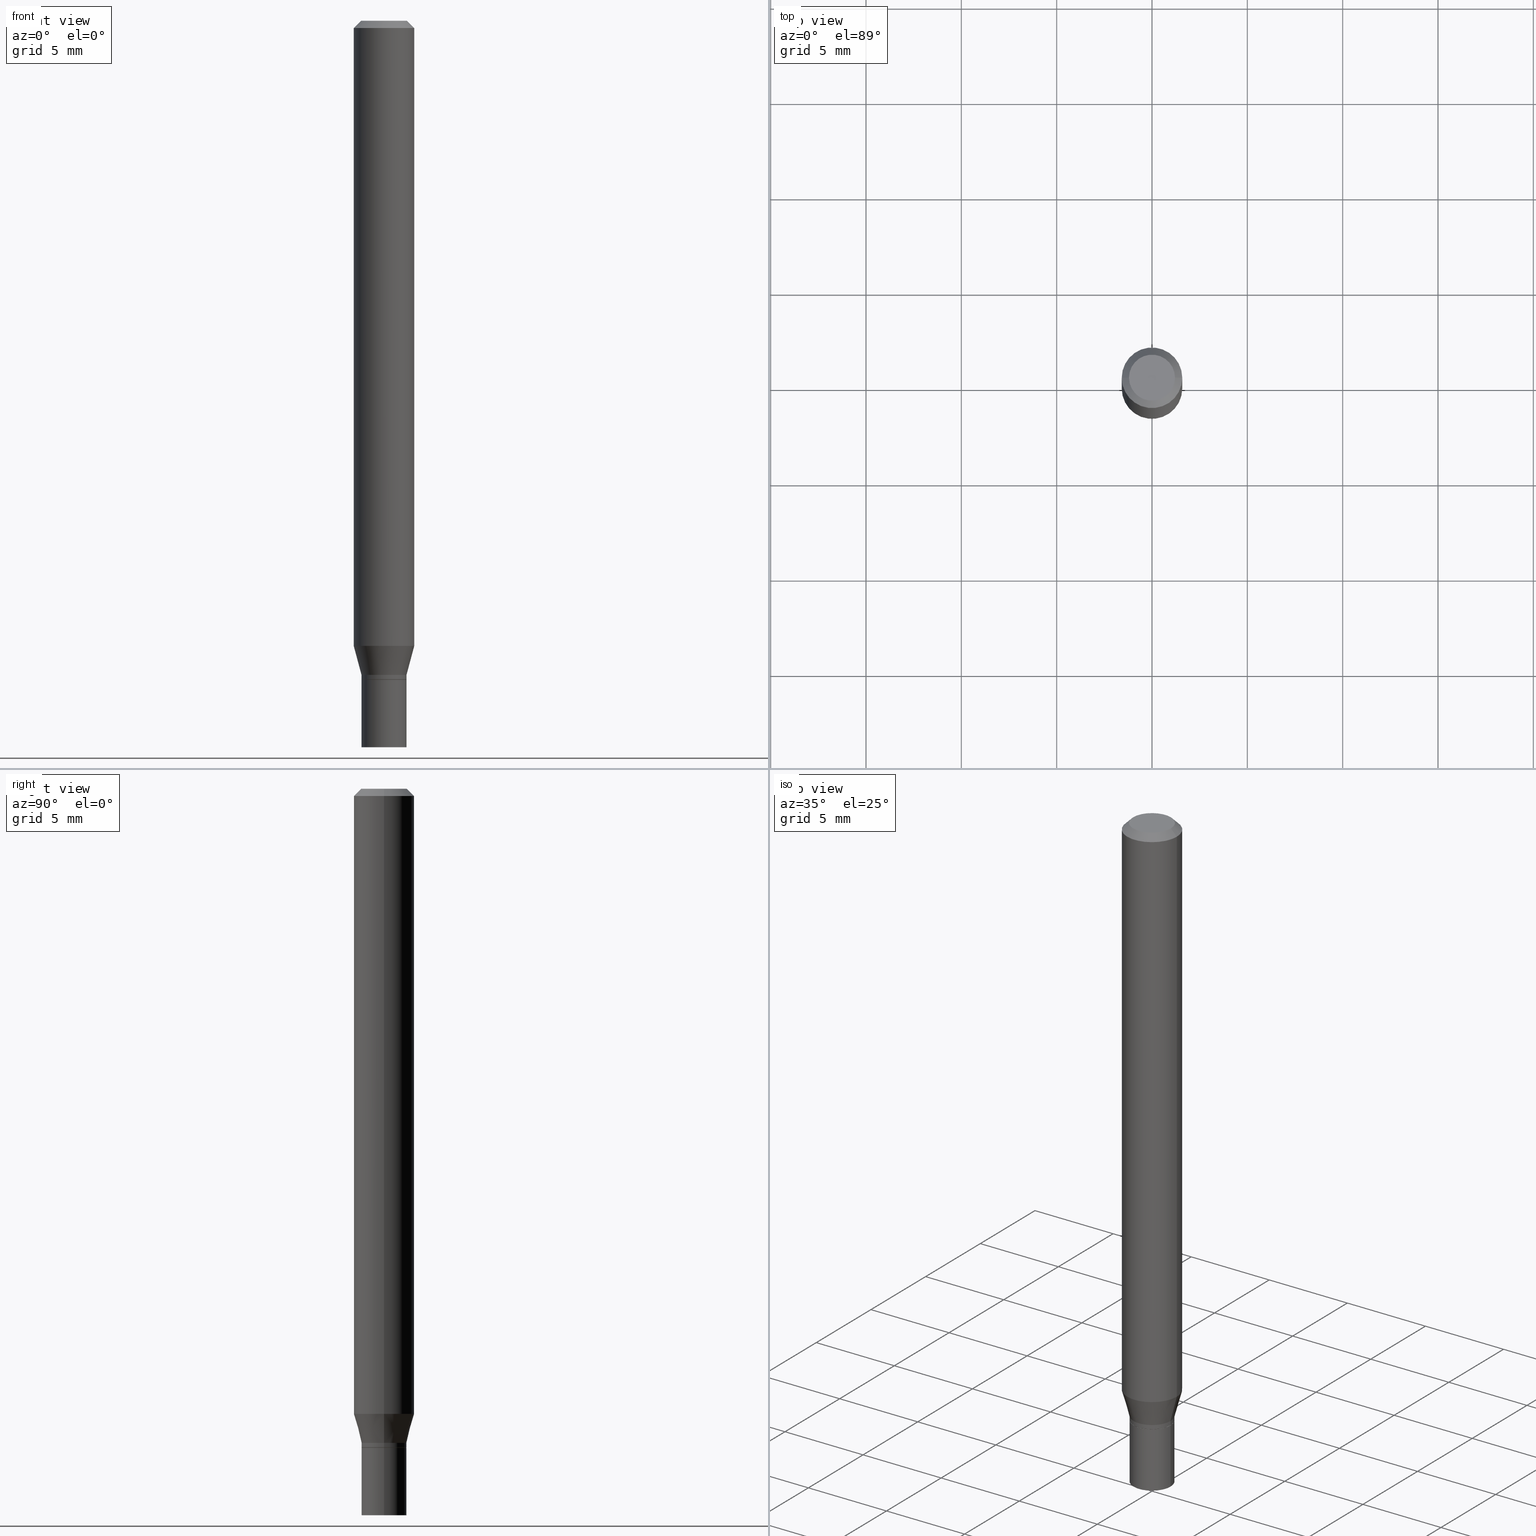
[diagram: canonical four-view strip — front | top / right | iso, engineering-drawing reading convention]
A machine part, canonical four-view strip (front | top / right | iso — engineering-drawing reading convention). The complete STEP part file that produces these views, byte-faithful:
ISO-10303-21;
HEADER;
FILE_DESCRIPTION (( 'STEP AP203' ),
    '1' );
FILE_NAME ('01149.STEP',
    '2024-03-19T23:23:34',
    ( '' ),
    ( '' ),
    'SwSTEP 2.0',
    'SolidWorks 2023',
    '' );
FILE_SCHEMA (( 'CONFIG_CONTROL_DESIGN' ));
ENDSEC;

DATA;
#1 = ORIENTED_EDGE ( 'NONE', *, *, #292, .T. ) ;
#2 = AXIS2_PLACEMENT_3D ( 'NONE', #419, #88, #309 ) ;
#3 = EDGE_CURVE ( 'NONE', #342, #327, #15, .T. ) ;
#4 = PRODUCT ( '01149', '01149', '', ( #192 ) ) ;
#5 = CIRCLE ( 'NONE', #218, 0.06250000000000000000 ) ;
#6 = CARTESIAN_POINT ( 'NONE',  ( 3.325837576411786624E-29, -4.748414620826679034E-15, -1.360000000000000320 ) ) ;
#7 = EDGE_LOOP ( 'NONE', ( #180, #405, #236, #177 ) ) ;
#8 = DIRECTION ( 'NONE',  ( 1.000000000000000000, -6.982962677686260400E-15, 0.000000000000000000 ) ) ;
#9 = ORIENTED_EDGE ( 'NONE', *, *, #61, .F. ) ;
#10 = ORIENTED_EDGE ( 'NONE', *, *, #3, .F. ) ;
#11 = AXIS2_PLACEMENT_3D ( 'NONE', #6, #440, #104 ) ;
#12 = ORIENTED_EDGE ( 'NONE', *, *, #98, .F. ) ;
#13 = ORIENTED_EDGE ( 'NONE', *, *, #83, .T. ) ;
#14 = ORIENTED_EDGE ( 'NONE', *, *, #49, .F. ) ;
#15 = LINE ( 'NONE', #183, #365 ) ;
#16 = PERSON_AND_ORGANIZATION_ROLE ( 'design_supplier' ) ;
#17 = ADVANCED_FACE ( 'NONE', ( #254 ), #243, .T. ) ;
#18 = DIRECTION ( 'NONE',  ( 1.000000000000000000, -6.982962677686271444E-15, 0.000000000000000000 ) ) ;
#19 = LINE ( 'NONE', #323, #158 ) ;
#20 = LINE ( 'NONE', #146, #346 ) ;
#21 = AXIS2_PLACEMENT_3D ( 'NONE', #390, #30, #160 ) ;
#22 = CONICAL_SURFACE ( 'NONE', #282, 0.04649999999999993722, 0.2617993877991500740 ) ;
#23 = CARTESIAN_POINT ( 'NONE',  ( 0.000000000000000000, 0.000000000000000000, 0.000000000000000000 ) ) ;
#24 = LOCAL_TIME ( 19, 23, 34.00000000000000000, #229 ) ;
#25 = CARTESIAN_POINT ( 'NONE',  ( 0.04599999999999999922, -5.071376644669669027E-15, -1.360500000000000043 ) ) ;
#26 = CARTESIAN_POINT ( 'NONE',  ( -0.06250000000000000000, -1.835476588243164778E-15, -0.01499999999999999944 ) ) ;
#27 = APPLICATION_PROTOCOL_DEFINITION ( 'international standard', 'config_control_design', 1994, #163 ) ;
#28 = DIRECTION ( 'NONE',  ( 1.000000000000000000, -6.982962677686265922E-15, 4.876176775795935793E-29 ) ) ;
#29 = LINE ( 'NONE', #157, #286 ) ;
#30 = DIRECTION ( 'NONE',  ( -2.445468806185136597E-29, 3.491481338843145583E-15, 1.000000000000000000 ) ) ;
#31 = CONICAL_SURFACE ( 'NONE', #415, 0.06250000000000000000, 0.7853981633974456145 ) ;
#32 = CYLINDRICAL_SURFACE ( 'NONE', #249, 0.04649999999999999967 ) ;
#33 = DIRECTION ( 'NONE',  ( -2.445468806185136597E-29, 3.491481338843145583E-15, 1.000000000000000000 ) ) ;
#34 =( CONVERSION_BASED_UNIT ( 'INCH', #277 ) LENGTH_UNIT ( ) NAMED_UNIT ( #89 ) );
#35 = CYLINDRICAL_SURFACE ( 'NONE', #101, 0.06250000000000000000 ) ;
#36 = ORIENTED_EDGE ( 'NONE', *, *, #245, .T. ) ;
#37 = FACE_OUTER_BOUND ( 'NONE', #82, .T. ) ;
#38 = LINE ( 'NONE', #209, #305 ) ;
#39 = VERTEX_POINT ( 'NONE', #288 ) ;
#40 = ORIENTED_EDGE ( 'NONE', *, *, #200, .F. ) ;
#41 = MANIFOLD_SOLID_BREP ( 'Body-Move/Copy2[1]', #216 ) ;
#42 = ORIENTED_EDGE ( 'NONE', *, *, #285, .F. ) ;
#43 = VECTOR ( 'NONE', #185, 39.37007874015748143 ) ;
#44 = AXIS2_PLACEMENT_3D ( 'NONE', #113, #184, #398 ) ;
#45 = ORIENTED_EDGE ( 'NONE', *, *, #447, .T. ) ;
#46 = CARTESIAN_POINT ( 'NONE',  ( 3.327060310814878865E-29, -4.750160361496100537E-15, -1.360500000000000043 ) ) ;
#47 = APPROVAL_STATUS ( 'not_yet_approved' ) ;
#48 = CIRCLE ( 'NONE', #44, 0.06250000000000000000 ) ;
#49 = EDGE_CURVE ( 'NONE', #360, #342, #181, .T. ) ;
#50 = ORIENTED_EDGE ( 'NONE', *, *, #389, .T. ) ;
#51 = CC_DESIGN_APPROVAL ( #412, ( #434 ) ) ;
#52 = DIRECTION ( 'NONE',  ( -2.445468806185136597E-29, 3.491481338843145583E-15, 1.000000000000000000 ) ) ;
#53 = VERTEX_POINT ( 'NONE', #449 ) ;
#54 = DATE_AND_TIME ( #416, #387 ) ;
#55 = DIRECTION ( 'NONE',  ( 1.000000000000000000, -6.982962677686260400E-15, 0.000000000000000000 ) ) ;
#56 = CARTESIAN_POINT ( 'NONE',  ( -0.04649999999999992334, -4.418012248698233337E-15, -1.360000000000000320 ) ) ;
#57 = DIRECTION ( 'NONE',  ( 1.000000000000000000, -6.982962677686267499E-15, 4.876176775795936353E-29 ) ) ;
#58 = CIRCLE ( 'NONE', #11, 0.04649999999999992334 ) ;
#59 = DIRECTION ( 'NONE',  ( 1.000000000000000000, -6.982962677686266711E-15, 4.876176775795935793E-29 ) ) ;
#60 = FACE_OUTER_BOUND ( 'NONE', #372, .T. ) ;
#61 = EDGE_CURVE ( 'NONE', #128, #227, #125, .T. ) ;
#62 = CARTESIAN_POINT ( 'NONE',  ( 3.156579801424902846E-29, -4.506759376103808104E-15, -1.290787187078897835 ) ) ;
#63 = ADVANCED_BREP_SHAPE_REPRESENTATION ( '01149', ( #41, #349, #109 ), #378 ) ;
#64 = PLANE ( 'NONE',  #464 ) ;
#65 = ORIENTED_EDGE ( 'NONE', *, *, #454, .F. ) ;
#66 = CARTESIAN_POINT ( 'NONE',  ( 3.327060310814878865E-29, -4.750160361496100537E-15, -1.360500000000000043 ) ) ;
#67 = ORIENTED_EDGE ( 'NONE', *, *, #333, .F. ) ;
#68 = CIRCLE ( 'NONE', #377, 0.04599999999999999922 ) ;
#69 = FACE_OUTER_BOUND ( 'NONE', #7, .T. ) ;
#70 = CARTESIAN_POINT ( 'NONE',  ( 3.668203209277705088E-31, -5.237222008264718399E-17, -0.01499999999999999944 ) ) ;
#71 = EDGE_LOOP ( 'NONE', ( #306, #444, #50, #253 ) ) ;
#72 = FACE_OUTER_BOUND ( 'NONE', #264, .T. ) ;
#73 = AXIS2_PLACEMENT_3D ( 'NONE', #46, #108, #290 ) ;
#74 = AXIS2_PLACEMENT_3D ( 'NONE', #103, #179, #18 ) ;
#75 = CC_DESIGN_APPROVAL ( #135, ( #409 ) ) ;
#76 = ADVANCED_FACE ( 'NONE', ( #77 ), #276, .T. ) ;
#77 = FACE_OUTER_BOUND ( 'NONE', #252, .T. ) ;
#78 = VECTOR ( 'NONE', #130, 39.37007874015748143 ) ;
#79 = DIRECTION ( 'NONE',  ( -2.445468806185136597E-29, 3.491481338843145583E-15, 1.000000000000000000 ) ) ;
#80 = AXIS2_PLACEMENT_3D ( 'NONE', #430, #456, #350 ) ;
#81 = VERTEX_POINT ( 'NONE', #273 ) ;
#82 = EDGE_LOOP ( 'NONE', ( #36, #432, #9, #257 ) ) ;
#83 = EDGE_CURVE ( 'NONE', #342, #360, #402, .T. ) ;
#84 = ORIENTED_EDGE ( 'NONE', *, *, #435, .F. ) ;
#85 = DIRECTION ( 'NONE',  ( 1.000000000000000000, -6.982962677686260400E-15, 0.000000000000000000 ) ) ;
#86 = AXIS2_PLACEMENT_3D ( 'NONE', #321, #33, #97 ) ;
#87 = ORIENTED_EDGE ( 'NONE', *, *, #447, .F. ) ;
#88 = DIRECTION ( 'NONE',  ( 2.445468806185136597E-29, -3.491481338843145583E-15, -1.000000000000000000 ) ) ;
#89 = DIMENSIONAL_EXPONENTS ( 1.000000000000000000, 0.000000000000000000, 0.000000000000000000, 0.000000000000000000, 0.000000000000000000, 0.000000000000000000, 0.000000000000000000 ) ;
#90 = CC_DESIGN_PERSON_AND_ORGANIZATION_ASSIGNMENT ( #420, #343, ( #296 ) ) ;
#91 = DIRECTION ( 'NONE',  ( 0.2588190451025213501, 1.565188264969621968E-15, 0.9659258262890682012 ) ) ;
#92 = DIRECTION ( 'NONE',  ( 1.000000000000000000, 0.000000000000000000, 0.000000000000000000 ) ) ;
#93 = AXIS2_PLACEMENT_3D ( 'NONE', #233, #79, #441 ) ;
#94 = CC_DESIGN_APPROVAL ( #407, ( #296 ) ) ;
#95 = DIRECTION ( 'NONE',  ( 1.000000000000000000, -6.982962677686262766E-15, 0.000000000000000000 ) ) ;
#96 = DIRECTION ( 'NONE',  ( 1.000000000000000000, -6.982962677686262766E-15, 0.000000000000000000 ) ) ;
#97 = DIRECTION ( 'NONE',  ( 1.000000000000000000, -6.982962677686269866E-15, 0.000000000000000000 ) ) ;
#98 = EDGE_CURVE ( 'NONE', #403, #429, #426, .T. ) ;
#99 = DIRECTION ( 'NONE',  ( -2.445468806185136597E-29, 3.491481338843145583E-15, 1.000000000000000000 ) ) ;
#100 = DIRECTION ( 'NONE',  ( -2.445468806185136597E-29, 3.491481338843145583E-15, 1.000000000000000000 ) ) ;
#101 = AXIS2_PLACEMENT_3D ( 'NONE', #328, #134, #330 ) ;
#102 = PERSON_AND_ORGANIZATION_ROLE ( 'design_owner' ) ;
#103 = CARTESIAN_POINT ( 'NONE',  ( 3.325837576411786624E-29, -4.748414620826679034E-15, -1.360000000000000320 ) ) ;
#104 = DIRECTION ( 'NONE',  ( 1.000000000000000000, -6.982962677686271444E-15, 0.000000000000000000 ) ) ;
#105 = ORIENTED_EDGE ( 'NONE', *, *, #154, .F. ) ;
#106 = PRODUCT_RELATED_PRODUCT_CATEGORY ( 'detail', '', ( #4 ) ) ;
#107 = ORIENTED_EDGE ( 'NONE', *, *, #374, .F. ) ;
#108 = DIRECTION ( 'NONE',  ( -2.445468806185136597E-29, 3.491481338843145583E-15, 1.000000000000000000 ) ) ;
#109 = AXIS2_PLACEMENT_3D ( 'NONE', #23, #310, #92 ) ;
#110 = VERTEX_POINT ( 'NONE', #56 ) ;
#111 = DIRECTION ( 'NONE',  ( -2.445468806185136597E-29, 3.491481338843145583E-15, 1.000000000000000000 ) ) ;
#112 = EDGE_LOOP ( 'NONE', ( #65, #84 ) ) ;
#113 = CARTESIAN_POINT ( 'NONE',  ( 3.668203209277705088E-31, -5.237222008264718399E-17, -0.01499999999999999944 ) ) ;
#114 = ORIENTED_EDGE ( 'NONE', *, *, #61, .T. ) ;
#115 = CC_DESIGN_PERSON_AND_ORGANIZATION_ASSIGNMENT ( #250, #371, ( #434 ) ) ;
#116 = DIRECTION ( 'NONE',  ( 1.000000000000000000, -6.982962677686269866E-15, 0.000000000000000000 ) ) ;
#117 = AXIS2_PLACEMENT_3D ( 'NONE', #283, #366, #436 ) ;
#118 = DIRECTION ( 'NONE',  ( 1.000000000000000000, -6.982962677686265922E-15, 4.876176775795935793E-29 ) ) ;
#119 =( NAMED_UNIT ( * ) PLANE_ANGLE_UNIT ( ) SI_UNIT ( $, .RADIAN. ) );
#120 = FACE_OUTER_BOUND ( 'NONE', #414, .T. ) ;
#121 = EDGE_CURVE ( 'NONE', #403, #39, #424, .T. ) ;
#122 = PERSON_AND_ORGANIZATION ( #442, #369 ) ;
#123 = CARTESIAN_POINT ( 'NONE',  ( 0.000000000000000000, 0.000000000000000000, 0.000000000000000000 ) ) ;
#124 = CARTESIAN_POINT ( 'NONE',  ( 3.302605622753026759E-29, -4.715245548107668099E-15, -1.350500000000000034 ) ) ;
#125 = CIRCLE ( 'NONE', #364, 0.04649999999999993722 ) ;
#126 = CONICAL_SURFACE ( 'NONE', #86, 0.04599999999999999922, 0.7853981633974739252 ) ;
#127 = EDGE_CURVE ( 'NONE', #360, #429, #195, .T. ) ;
#128 = VERTEX_POINT ( 'NONE', #356 ) ;
#129 = ORIENTED_EDGE ( 'NONE', *, *, #166, .T. ) ;
#130 = DIRECTION ( 'NONE',  ( -2.445468806185136877E-29, 3.491481338843145188E-15, 1.000000000000000000 ) ) ;
#131 = DIRECTION ( 'NONE',  ( -2.445468806185136597E-29, 3.491481338843145583E-15, 1.000000000000000000 ) ) ;
#132 = CIRCLE ( 'NONE', #255, 0.04649999999999999967 ) ;
#133 = DIRECTION ( 'NONE',  ( 2.438088387897960049E-29, -3.491481338843145188E-15, -1.000000000000000000 ) ) ;
#134 = DIRECTION ( 'NONE',  ( -2.445468806185136597E-29, 3.491481338843145583E-15, 1.000000000000000000 ) ) ;
#135 = APPROVAL ( #155, 'UNSPECIFIED' ) ;
#136 = VECTOR ( 'NONE', #335, 39.37007874015748143 ) ;
#137 = APPLICATION_CONTEXT ( 'configuration controlled 3d designs of mechanical parts and assemblies' ) ;
#138 = EDGE_CURVE ( 'NONE', #327, #429, #319, .T. ) ;
#139 = COORDINATED_UNIVERSAL_TIME_OFFSET ( 5, 0, .BEHIND. ) ;
#140 = ORIENTED_EDGE ( 'NONE', *, *, #228, .T. ) ;
#141 = ORIENTED_EDGE ( 'NONE', *, *, #262, .F. ) ;
#142 = LOCAL_TIME ( 19, 23, 34.00000000000000000, #455 ) ;
#143 = EDGE_LOOP ( 'NONE', ( #221, #408, #359, #105 ) ) ;
#144 = EDGE_LOOP ( 'NONE', ( #431, #13 ) ) ;
#145 = PERSON_AND_ORGANIZATION_ROLE ( 'classification_officer' ) ;
#146 = CARTESIAN_POINT ( 'NONE',  ( -0.04649999999999999967, 3.304023721284465841E-16, -2.287304816968531530E-30 ) ) ;
#147 = PLANE ( 'NONE',  #396 ) ;
#148 = DIRECTION ( 'NONE',  ( -1.000000000000000000, 6.982962677686265922E-15, -4.876176775795935793E-29 ) ) ;
#149 = CIRCLE ( 'NONE', #231, 0.04649999999999999967 ) ;
#150 = DIRECTION ( 'NONE',  ( -0.7071067811865656694, 7.493145998870420424E-15, 0.7071067811865294761 ) ) ;
#151 = DIRECTION ( 'NONE',  ( -2.445468806185136597E-29, 3.491481338843145583E-15, 1.000000000000000000 ) ) ;
#152 = ORIENTED_EDGE ( 'NONE', *, *, #313, .T. ) ;
#153 = COORDINATED_UNIVERSAL_TIME_OFFSET ( 5, 0, .BEHIND. ) ;
#154 = EDGE_CURVE ( 'NONE', #81, #53, #270, .T. ) ;
#155 = APPROVAL_STATUS ( 'not_yet_approved' ) ;
#156 = LINE ( 'NONE', #315, #417 ) ;
#157 = CARTESIAN_POINT ( 'NONE',  ( -0.04649999999999993722, -4.384843175979221614E-15, -1.350500000000000034 ) ) ;
#158 = VECTOR ( 'NONE', #91, 39.37007874015747433 ) ;
#159 = AXIS2_PLACEMENT_3D ( 'NONE', #165, #133, #212 ) ;
#160 = DIRECTION ( 'NONE',  ( 1.000000000000000000, -6.982962677686266711E-15, 0.000000000000000000 ) ) ;
#161 = LOCAL_TIME ( 19, 23, 34.00000000000000000, #139 ) ;
#162 = ORIENTED_EDGE ( 'NONE', *, *, #383, .F. ) ;
#163 = APPLICATION_CONTEXT ( 'configuration controlled 3d designs of mechanical parts and assemblies' ) ;
#164 = CARTESIAN_POINT ( 'NONE',  ( 0.04749999999999999362, -4.035134999187577144E-16, 8.673617379885194112E-17 ) ) ;
#165 = CARTESIAN_POINT ( 'NONE',  ( 3.247077645124446289E-16, 0.04649999999999525346, -1.360500000000000487 ) ) ;
#166 = EDGE_CURVE ( 'NONE', #128, #39, #19, .T. ) ;
#167 = CARTESIAN_POINT ( 'NONE',  ( 0.04649999999999999967, -5.074868126008511245E-15, -1.360500000000000043 ) ) ;
#168 = CIRCLE ( 'NONE', #80, 0.04599999999999999922 ) ;
#169 = ORIENTED_EDGE ( 'NONE', *, *, #333, .T. ) ;
#170 = ORIENTED_EDGE ( 'NONE', *, *, #200, .T. ) ;
#171 = CC_DESIGN_PERSON_AND_ORGANIZATION_ASSIGNMENT ( #458, #145, ( #409 ) ) ;
#172 = PERSON_AND_ORGANIZATION ( #442, #369 ) ;
#173 = ADVANCED_FACE ( 'NONE', ( #345 ), #147, .F. ) ;
#174 = LINE ( 'NONE', #367, #136 ) ;
#175 = CIRCLE ( 'NONE', #275, 0.04649999999999993722 ) ;
#176 = LOCAL_TIME ( 19, 23, 34.00000000000000000, #153 ) ;
#177 = ORIENTED_EDGE ( 'NONE', *, *, #213, .F. ) ;
#178 = CC_DESIGN_PERSON_AND_ORGANIZATION_ASSIGNMENT ( #433, #102, ( #4 ) ) ;
#179 = DIRECTION ( 'NONE',  ( -2.445468806185136597E-29, 3.491481338843145583E-15, 1.000000000000000000 ) ) ;
#180 = ORIENTED_EDGE ( 'NONE', *, *, #427, .F. ) ;
#181 = CIRCLE ( 'NONE', #93, 0.04749999999999999362 ) ;
#182 = CONICAL_SURFACE ( 'NONE', #223, 0.04649999999999993722, 0.2617993877991500740 ) ;
#183 = CARTESIAN_POINT ( 'NONE',  ( 0.06250000000000000000, -4.811533449433679005E-16, -0.01499999999999999944 ) ) ;
#184 = DIRECTION ( 'NONE',  ( -2.445468806185136597E-29, 3.491481338843145583E-15, 1.000000000000000000 ) ) ;
#185 = DIRECTION ( 'NONE',  ( 0.7071067811865656694, -2.468850131082446387E-15, 0.7071067811865294761 ) ) ;
#186 = DIRECTION ( 'NONE',  ( -0.2588190451025213501, 5.211531920934551042E-15, 0.9659258262890682012 ) ) ;
#187 = CARTESIAN_POINT ( 'NONE',  ( -0.06250000000000000000, 4.440892098500626162E-16, -3.074334431409316114E-30 ) ) ;
#188 = SHAPE_DEFINITION_REPRESENTATION ( #291, #63 ) ;
#189 = ADVANCED_FACE ( 'NONE', ( #267 ), #406, .T. ) ;
#190 = AXIS2_PLACEMENT_3D ( 'NONE', #461, #388, #279 ) ;
#191 = CARTESIAN_POINT ( 'NONE',  ( 3.327060310814878865E-29, -4.750160361496100537E-15, -1.360500000000000043 ) ) ;
#192 = MECHANICAL_CONTEXT ( 'NONE', #137, 'mechanical' ) ;
#193 = DIRECTION ( 'NONE',  ( -2.438088387897960049E-29, 3.491481338843145188E-15, 1.000000000000000000 ) ) ;
#194 = CARTESIAN_POINT ( 'NONE',  ( -0.04649999999999999967, -4.663288812751962872E-15, -1.500000000000000222 ) ) ;
#195 = LINE ( 'NONE', #353, #358 ) ;
#196 = APPROVAL_ROLE ( '' ) ;
#197 = CARTESIAN_POINT ( 'NONE',  ( 0.04649999999999993722, -3.247077645124109544E-16, 2.267422200745106823E-30 ) ) ;
#198 = CARTESIAN_POINT ( 'NONE',  ( -0.06250000000000000000, -4.062670166253745488E-15, -1.290787187078897835 ) ) ;
#199 = CARTESIAN_POINT ( 'NONE',  ( 0.04649999999999999967, -5.561929772777129673E-15, -1.500000000000000222 ) ) ;
#200 = EDGE_CURVE ( 'NONE', #299, #298, #132, .T. ) ;
#201 = EDGE_LOOP ( 'NONE', ( #443, #152 ) ) ;
#202 = DIRECTION ( 'NONE',  ( -2.445468806185136597E-29, 3.491481338843145583E-15, 1.000000000000000000 ) ) ;
#203 = APPLICATION_PROTOCOL_DEFINITION ( 'international standard', 'config_control_design', 1994, #137 ) ;
#204 = DIRECTION ( 'NONE',  ( 1.000000000000000000, -6.982962677686269866E-15, 0.000000000000000000 ) ) ;
#205 = CIRCLE ( 'NONE', #425, 0.04649999999999999967 ) ;
#206 = ORIENTED_EDGE ( 'NONE', *, *, #262, .T. ) ;
#207 = DIRECTION ( 'NONE',  ( -2.445468806185136597E-29, 3.491481338843145583E-15, 1.000000000000000000 ) ) ;
#208 = APPROVAL_PERSON_ORGANIZATION ( #172, #407, #196 ) ;
#209 = CARTESIAN_POINT ( 'NONE',  ( -0.04649999999999993722, 3.304023721284461403E-16, -2.287304816968528027E-30 ) ) ;
#210 = DIRECTION ( 'NONE',  ( 1.000000000000000000, -6.982962677686269866E-15, 0.000000000000000000 ) ) ;
#211 = FACE_OUTER_BOUND ( 'NONE', #201, .T. ) ;
#212 = DIRECTION ( 'NONE',  ( -1.000000000000000000, 6.982962677686265922E-15, -4.876176775795935793E-29 ) ) ;
#213 = EDGE_CURVE ( 'NONE', #110, #53, #58, .T. ) ;
#214 = ADVANCED_FACE ( 'NONE', ( #211 ), #361, .F. ) ;
#215 = DIRECTION ( 'NONE',  ( -1.000000000000000000, 6.982962677686266711E-15, 0.000000000000000000 ) ) ;
#216 = CLOSED_SHELL ( 'NONE', ( #281, #173, #465, #214 ) ) ;
#217 = ORIENTED_EDGE ( 'NONE', *, *, #325, .T. ) ;
#218 = AXIS2_PLACEMENT_3D ( 'NONE', #316, #418, #95 ) ;
#219 = ADVANCED_FACE ( 'NONE', ( #72 ), #31, .T. ) ;
#220 = CARTESIAN_POINT ( 'NONE',  ( -0.04749999999999999362, 3.578768372314211985E-16, 8.673617379884694910E-17 ) ) ;
#221 = ORIENTED_EDGE ( 'NONE', *, *, #454, .T. ) ;
#222 = VECTOR ( 'NONE', #394, 39.37007874015748143 ) ;
#223 = AXIS2_PLACEMENT_3D ( 'NONE', #413, #151, #116 ) ;
#224 = CARTESIAN_POINT ( 'NONE',  ( 3.302605622753026759E-29, -4.715245548107668099E-15, -1.350500000000000034 ) ) ;
#225 = DATE_AND_TIME ( #410, #161 ) ;
#226 = ORIENTED_EDGE ( 'NONE', *, *, #292, .F. ) ;
#227 = VERTEX_POINT ( 'NONE', #331 ) ;
#228 = EDGE_CURVE ( 'NONE', #227, #128, #175, .T. ) ;
#229 = COORDINATED_UNIVERSAL_TIME_OFFSET ( 5, 0, .BEHIND. ) ;
#230 = ORIENTED_EDGE ( 'NONE', *, *, #121, .F. ) ;
#231 = AXIS2_PLACEMENT_3D ( 'NONE', #460, #381, #55 ) ;
#232 = DIRECTION ( 'NONE',  ( 2.438088387897960049E-29, -3.491481338843145188E-15, -1.000000000000000000 ) ) ;
#233 = CARTESIAN_POINT ( 'NONE',  ( -2.121106073929386760E-45, 3.028377322213383622E-31, 8.673617379884936499E-17 ) ) ;
#234 = SECURITY_CLASSIFICATION_LEVEL ( 'unclassified' ) ;
#235 = LINE ( 'NONE', #326, #265 ) ;
#236 = ORIENTED_EDGE ( 'NONE', *, *, #154, .T. ) ;
#237 = CARTESIAN_POINT ( 'NONE',  ( 0.000000000000000000, 0.000000000000000000, 0.000000000000000000 ) ) ;
#238 = CALENDAR_DATE ( 2024, 19, 3 ) ;
#239 = ADVANCED_FACE ( 'NONE', ( #37 ), #284, .T. ) ;
#240 = CYLINDRICAL_SURFACE ( 'NONE', #438, 0.04649999999999999967 ) ;
#241 = EDGE_LOOP ( 'NONE', ( #10, #14, #294, #169 ) ) ;
#242 =( LENGTH_UNIT ( ) NAMED_UNIT ( * ) SI_UNIT ( $, .METRE. ) );
#243 = CONICAL_SURFACE ( 'NONE', #73, 0.04599999999999999922, 0.7853981633974739252 ) ;
#244 = AXIS2_PLACEMENT_3D ( 'NONE', #451, #312, #85 ) ;
#245 = EDGE_CURVE ( 'NONE', #53, #110, #397, .T. ) ;
#246 = CARTESIAN_POINT ( 'NONE',  ( 3.302605622753026759E-29, -4.715245548107668099E-15, -1.350500000000000034 ) ) ;
#247 = CLOSED_SHELL ( 'NONE', ( #239, #17, #219, #352, #317, #256, #76, #189, #293, #423, #336, #400 ) ) ;
#248 = AXIS2_PLACEMENT_3D ( 'NONE', #66, #193, #28 ) ;
#249 = AXIS2_PLACEMENT_3D ( 'NONE', #123, #99, #272 ) ;
#250 = PERSON_AND_ORGANIZATION ( #442, #369 ) ;
#251 = ORIENTED_EDGE ( 'NONE', *, *, #374, .T. ) ;
#252 = EDGE_LOOP ( 'NONE', ( #12, #373, #45, #67 ) ) ;
#253 = ORIENTED_EDGE ( 'NONE', *, *, #228, .F. ) ;
#254 = FACE_OUTER_BOUND ( 'NONE', #143, .T. ) ;
#255 = AXIS2_PLACEMENT_3D ( 'NONE', #357, #131, #329 ) ;
#256 = ADVANCED_FACE ( 'NONE', ( #385 ), #182, .T. ) ;
#257 = ORIENTED_EDGE ( 'NONE', *, *, #389, .F. ) ;
#258 = APPROVAL_DATE_TIME ( #375, #412 ) ;
#259 = VERTEX_POINT ( 'NONE', #263 ) ;
#260 = CALENDAR_DATE ( 2024, 19, 3 ) ;
#261 = ORIENTED_EDGE ( 'NONE', *, *, #313, .F. ) ;
#262 = EDGE_CURVE ( 'NONE', #39, #403, #5, .T. ) ;
#263 = CARTESIAN_POINT ( 'NONE',  ( -0.04599999999999999922, -4.420661475872342960E-15, -1.360500000000000043 ) ) ;
#264 = EDGE_LOOP ( 'NONE', ( #278, #446, #337, #334 ) ) ;
#265 = VECTOR ( 'NONE', #150, 39.37007874015748143 ) ;
#266 = FACE_OUTER_BOUND ( 'NONE', #144, .T. ) ;
#267 = FACE_OUTER_BOUND ( 'NONE', #241, .T. ) ;
#268 = CC_DESIGN_DATE_AND_TIME_ASSIGNMENT ( #225, #339, ( #434 ) ) ;
#269 = DIRECTION ( 'NONE',  ( 1.000000000000000000, -6.982962677686269866E-15, 0.000000000000000000 ) ) ;
#270 = LINE ( 'NONE', #25, #43 ) ;
#271 = COORDINATED_UNIVERSAL_TIME_OFFSET ( 5, 0, .BEHIND. ) ;
#272 = DIRECTION ( 'NONE',  ( 1.000000000000000000, -6.982962677686267499E-15, 4.876176775795936353E-29 ) ) ;
#273 = CARTESIAN_POINT ( 'NONE',  ( 0.04599999999999999922, -5.071376644669669027E-15, -1.360500000000000043 ) ) ;
#274 = ORIENTED_EDGE ( 'NONE', *, *, #325, .F. ) ;
#275 = AXIS2_PLACEMENT_3D ( 'NONE', #246, #100, #210 ) ;
#276 = CYLINDRICAL_SURFACE ( 'NONE', #303, 0.06250000000000000000 ) ;
#277 = LENGTH_MEASURE_WITH_UNIT ( LENGTH_MEASURE( 0.02539999999999999897 ), #242 );
#278 = ORIENTED_EDGE ( 'NONE', *, *, #83, .F. ) ;
#279 = DIRECTION ( 'NONE',  ( 1.000000000000000000, -6.982962677686267499E-15, 4.884662768193073002E-29 ) ) ;
#280 = DIRECTION ( 'NONE',  ( -2.445468806185136597E-29, 3.491481338843145583E-15, 1.000000000000000000 ) ) ;
#281 = ADVANCED_FACE ( 'NONE', ( #60 ), #240, .T. ) ;
#282 = AXIS2_PLACEMENT_3D ( 'NONE', #124, #52, #269 ) ;
#283 = CARTESIAN_POINT ( 'NONE',  ( 0.000000000000000000, 0.000000000000000000, 0.000000000000000000 ) ) ;
#284 = CYLINDRICAL_SURFACE ( 'NONE', #117, 0.04649999999999993722 ) ;
#285 = EDGE_CURVE ( 'NONE', #298, #376, #20, .T. ) ;
#286 = VECTOR ( 'NONE', #186, 39.37007874015747433 ) ;
#287 = APPROVAL_PERSON_ORGANIZATION ( #122, #135, #302 ) ;
#288 = CARTESIAN_POINT ( 'NONE',  ( 0.06250000000000000000, -4.943194543459198984E-15, -1.290787187078897835 ) ) ;
#289 = LINE ( 'NONE', #197, #78 ) ;
#290 = DIRECTION ( 'NONE',  ( 1.000000000000000000, -6.982962677686269866E-15, 0.000000000000000000 ) ) ;
#291 = PRODUCT_DEFINITION_SHAPE ( 'NONE', 'NONE',  #434 ) ;
#292 = EDGE_CURVE ( 'NONE', #298, #299, #453, .T. ) ;
#293 = ADVANCED_FACE ( 'NONE', ( #266 ), #64, .F. ) ;
#294 = ORIENTED_EDGE ( 'NONE', *, *, #127, .T. ) ;
#295 = EDGE_LOOP ( 'NONE', ( #40, #226 ) ) ;
#296 = PRODUCT_DEFINITION_FORMATION_WITH_SPECIFIED_SOURCE ( 'ANY', '', #4, .NOT_KNOWN. ) ;
#297 = EDGE_LOOP ( 'NONE', ( #42, #1, #251, #261 ) ) ;
#298 = VERTEX_POINT ( 'NONE', #194 ) ;
#299 = VERTEX_POINT ( 'NONE', #199 ) ;
#300 = DIRECTION ( 'NONE',  ( -2.445468806185136877E-29, 3.491481338843145188E-15, 1.000000000000000000 ) ) ;
#301 = DIRECTION ( 'NONE',  ( -2.438088387897960049E-29, 3.491481338843145188E-15, 1.000000000000000000 ) ) ;
#302 = APPROVAL_ROLE ( '' ) ;
#303 = AXIS2_PLACEMENT_3D ( 'NONE', #237, #348, #59 ) ;
#304 = ORIENTED_EDGE ( 'NONE', *, *, #98, .T. ) ;
#305 = VECTOR ( 'NONE', #428, 39.37007874015748143 ) ;
#306 = ORIENTED_EDGE ( 'NONE', *, *, #338, .F. ) ;
#307 = DIRECTION ( 'NONE',  ( -0.7071067811865454633, 2.468850131082235761E-15, -0.7071067811865493491 ) ) ;
#308 = APPROVAL_DATE_TIME ( #54, #135 ) ;
#309 = DIRECTION ( 'NONE',  ( -1.000000000000000000, 6.982962677686266711E-15, 0.000000000000000000 ) ) ;
#310 = DIRECTION ( 'NONE',  ( 0.000000000000000000, 0.000000000000000000, 1.000000000000000000 ) ) ;
#311 =( NAMED_UNIT ( * ) SI_UNIT ( $, .STERADIAN. ) SOLID_ANGLE_UNIT ( ) );
#312 = DIRECTION ( 'NONE',  ( -2.445468806185136597E-29, 3.491481338843145583E-15, 1.000000000000000000 ) ) ;
#313 = EDGE_CURVE ( 'NONE', #376, #340, #149, .T. ) ;
#314 = DATE_AND_TIME ( #238, #176 ) ;
#315 = CARTESIAN_POINT ( 'NONE',  ( 0.06250000000000000000, -4.364351673553916694E-16, 3.047610484872459871E-30 ) ) ;
#316 = CARTESIAN_POINT ( 'NONE',  ( 3.156579801424902846E-29, -4.506759376103808104E-15, -1.290787187078897835 ) ) ;
#317 = ADVANCED_FACE ( 'NONE', ( #120 ), #22, .T. ) ;
#318 = DATE_TIME_ROLE ( 'classification_date' ) ;
#319 = CIRCLE ( 'NONE', #21, 0.06250000000000000000 ) ;
#320 = AXIS2_PLACEMENT_3D ( 'NONE', #395, #207, #393 ) ;
#321 = CARTESIAN_POINT ( 'NONE',  ( 3.327060310814878865E-29, -4.750160361496100537E-15, -1.360500000000000043 ) ) ;
#322 = CC_DESIGN_DATE_AND_TIME_ASSIGNMENT ( #450, #318, ( #409 ) ) ;
#323 = CARTESIAN_POINT ( 'NONE',  ( 0.04649999999999993722, -5.039953312620078807E-15, -1.350500000000000034 ) ) ;
#324 = CC_DESIGN_SECURITY_CLASSIFICATION ( #409, ( #296 ) ) ;
#325 = EDGE_CURVE ( 'NONE', #227, #403, #29, .T. ) ;
#326 = CARTESIAN_POINT ( 'NONE',  ( -0.04599999999999999922, -4.423310703046454161E-15, -1.360500000000000043 ) ) ;
#327 = VERTEX_POINT ( 'NONE', #448 ) ;
#328 = CARTESIAN_POINT ( 'NONE',  ( 0.000000000000000000, 0.000000000000000000, 0.000000000000000000 ) ) ;
#329 = DIRECTION ( 'NONE',  ( 1.000000000000000000, -6.982962677686260400E-15, 0.000000000000000000 ) ) ;
#330 = DIRECTION ( 'NONE',  ( 1.000000000000000000, -6.982962677686266711E-15, 4.876176775795935793E-29 ) ) ;
#331 = CARTESIAN_POINT ( 'NONE',  ( -0.04649999999999993722, -4.223756671116483156E-15, -1.350500000000000034 ) ) ;
#332 = UNCERTAINTY_MEASURE_WITH_UNIT (LENGTH_MEASURE( 1.000000000000000082E-05 ), #34, 'distance_accuracy_value', 'NONE');
#333 = EDGE_CURVE ( 'NONE', #429, #327, #48, .T. ) ;
#334 = ORIENTED_EDGE ( 'NONE', *, *, #127, .F. ) ;
#335 = DIRECTION ( 'NONE',  ( -2.445468806185136877E-29, 3.491481338843145188E-15, 1.000000000000000000 ) ) ;
#336 = ADVANCED_FACE ( 'NONE', ( #69 ), #126, .T. ) ;
#337 = ORIENTED_EDGE ( 'NONE', *, *, #138, .T. ) ;
#338 = EDGE_CURVE ( 'NONE', #110, #227, #38, .T. ) ;
#339 = DATE_TIME_ROLE ( 'creation_date' ) ;
#340 = VERTEX_POINT ( 'NONE', #167 ) ;
#341 = ORIENTED_EDGE ( 'NONE', *, *, #166, .F. ) ;
#342 = VERTEX_POINT ( 'NONE', #164 ) ;
#343 = PERSON_AND_ORGANIZATION_ROLE ( 'creator' ) ;
#344 = DESIGN_CONTEXT ( 'detailed design', #163, 'design' ) ;
#345 = FACE_OUTER_BOUND ( 'NONE', #295, .T. ) ;
#346 = VECTOR ( 'NONE', #300, 39.37007874015748143 ) ;
#347 = FACE_OUTER_BOUND ( 'NONE', #297, .T. ) ;
#348 = DIRECTION ( 'NONE',  ( -2.445468806185136597E-29, 3.491481338843145583E-15, 1.000000000000000000 ) ) ;
#349 = MANIFOLD_SOLID_BREP ( 'Body-Move/Copy2[2]', #247 ) ;
#350 = DIRECTION ( 'NONE',  ( 1.000000000000000000, -6.982962677686269866E-15, 0.000000000000000000 ) ) ;
#351 = CARTESIAN_POINT ( 'NONE',  ( 0.000000000000000000, 0.000000000000000000, 0.000000000000000000 ) ) ;
#352 = ADVANCED_FACE ( 'NONE', ( #362 ), #35, .T. ) ;
#353 = CARTESIAN_POINT ( 'NONE',  ( -0.06250000000000000000, 3.840629472727444916E-16, -0.01499999999999999944 ) ) ;
#354 = APPROVAL_DATE_TIME ( #314, #407 ) ;
#355 = FACE_OUTER_BOUND ( 'NONE', #71, .T. ) ;
#356 = CARTESIAN_POINT ( 'NONE',  ( 0.04649999999999993722, -5.039953312620078807E-15, -1.350500000000000034 ) ) ;
#357 = CARTESIAN_POINT ( 'NONE',  ( 3.668203209277704895E-29, -5.237222008264718177E-15, -1.500000000000000222 ) ) ;
#358 = VECTOR ( 'NONE', #307, 39.37007874015748854 ) ;
#359 = ORIENTED_EDGE ( 'NONE', *, *, #245, .F. ) ;
#360 = VERTEX_POINT ( 'NONE', #220 ) ;
#361 = PLANE ( 'NONE',  #159 ) ;
#362 = FACE_OUTER_BOUND ( 'NONE', #421, .T. ) ;
#363 = DIRECTION ( 'NONE',  ( 2.445468806185136597E-29, -3.491481338843145583E-15, -1.000000000000000000 ) ) ;
#364 = AXIS2_PLACEMENT_3D ( 'NONE', #224, #445, #404 ) ;
#365 = VECTOR ( 'NONE', #379, 39.37007874015748854 ) ;
#366 = DIRECTION ( 'NONE',  ( -2.445468806185136597E-29, 3.491481338843145583E-15, 1.000000000000000000 ) ) ;
#367 = CARTESIAN_POINT ( 'NONE',  ( 0.04649999999999999967, -3.247077645124114474E-16, 2.267422200745110326E-30 ) ) ;
#368 = APPROVAL_ROLE ( '' ) ;
#369 = ORGANIZATION ( 'UNSPECIFIED', 'UNSPECIFIED', '' ) ;
#370 = CARTESIAN_POINT ( 'NONE',  ( 3.327060310814878865E-29, -4.750160361496100537E-15, -1.360500000000000043 ) ) ;
#371 = PERSON_AND_ORGANIZATION_ROLE ( 'creator' ) ;
#372 = EDGE_LOOP ( 'NONE', ( #170, #411, #162, #107 ) ) ;
#373 = ORIENTED_EDGE ( 'NONE', *, *, #121, .T. ) ;
#374 = EDGE_CURVE ( 'NONE', #299, #340, #174, .T. ) ;
#375 = DATE_AND_TIME ( #260, #24 ) ;
#376 = VERTEX_POINT ( 'NONE', #382 ) ;
#377 = AXIS2_PLACEMENT_3D ( 'NONE', #191, #280, #204 ) ;
#378 =( GEOMETRIC_REPRESENTATION_CONTEXT ( 3 ) GLOBAL_UNCERTAINTY_ASSIGNED_CONTEXT ( ( #332 ) ) GLOBAL_UNIT_ASSIGNED_CONTEXT ( ( #34, #119, #311 ) ) REPRESENTATION_CONTEXT ( 'NONE', 'WORKASPACE' ) );
#379 = DIRECTION ( 'NONE',  ( 0.7071067811865454633, -7.319954787623246579E-15, -0.7071067811865493491 ) ) ;
#380 = CALENDAR_DATE ( 2024, 19, 3 ) ;
#381 = DIRECTION ( 'NONE',  ( -2.445468806185136597E-29, 3.491481338843145583E-15, 1.000000000000000000 ) ) ;
#382 = CARTESIAN_POINT ( 'NONE',  ( -0.04649999999999999967, -4.663288812751962872E-15, -1.360500000000000043 ) ) ;
#383 = EDGE_CURVE ( 'NONE', #340, #376, #205, .T. ) ;
#384 = PLANE ( 'NONE',  #248 ) ;
#385 = FACE_OUTER_BOUND ( 'NONE', #401, .T. ) ;
#386 = ORIENTED_EDGE ( 'NONE', *, *, #138, .F. ) ;
#387 = LOCAL_TIME ( 19, 23, 34.00000000000000000, #271 ) ;
#388 = DIRECTION ( 'NONE',  ( -2.445468806185136597E-29, 3.491481338843145583E-15, 1.000000000000000000 ) ) ;
#389 = EDGE_CURVE ( 'NONE', #53, #128, #289, .T. ) ;
#390 = CARTESIAN_POINT ( 'NONE',  ( 3.668203209277705088E-31, -5.237222008264718399E-17, -0.01499999999999999944 ) ) ;
#391 = PERSON_AND_ORGANIZATION ( #442, #369 ) ;
#392 = CYLINDRICAL_SURFACE ( 'NONE', #320, 0.04649999999999993722 ) ;
#393 = DIRECTION ( 'NONE',  ( 1.000000000000000000, -6.982962677686266711E-15, 4.876176775795935232E-29 ) ) ;
#394 = DIRECTION ( 'NONE',  ( -2.445468806185136877E-29, 3.491481338843145188E-15, 1.000000000000000000 ) ) ;
#395 = CARTESIAN_POINT ( 'NONE',  ( 0.000000000000000000, 0.000000000000000000, 0.000000000000000000 ) ) ;
#396 = AXIS2_PLACEMENT_3D ( 'NONE', #452, #301, #118 ) ;
#397 = CIRCLE ( 'NONE', #74, 0.04649999999999992334 ) ;
#398 = DIRECTION ( 'NONE',  ( 1.000000000000000000, -6.982962677686266711E-15, 0.000000000000000000 ) ) ;
#399 = APPROVAL_PERSON_ORGANIZATION ( #391, #412, #368 ) ;
#400 = ADVANCED_FACE ( 'NONE', ( #355 ), #392, .T. ) ;
#401 = EDGE_LOOP ( 'NONE', ( #274, #140, #129, #230 ) ) ;
#402 = CIRCLE ( 'NONE', #190, 0.04749999999999999362 ) ;
#403 = VERTEX_POINT ( 'NONE', #198 ) ;
#404 = DIRECTION ( 'NONE',  ( 1.000000000000000000, -6.982962677686269866E-15, 0.000000000000000000 ) ) ;
#405 = ORIENTED_EDGE ( 'NONE', *, *, #435, .T. ) ;
#406 = CONICAL_SURFACE ( 'NONE', #2, 0.06250000000000000000, 0.7853981633974456145 ) ;
#407 = APPROVAL ( #47, 'UNSPECIFIED' ) ;
#408 = ORIENTED_EDGE ( 'NONE', *, *, #427, .T. ) ;
#409 = SECURITY_CLASSIFICATION ( '', '', #234 ) ;
#410 = CALENDAR_DATE ( 2024, 19, 3 ) ;
#411 = ORIENTED_EDGE ( 'NONE', *, *, #285, .T. ) ;
#412 = APPROVAL ( #439, 'UNSPECIFIED' ) ;
#413 = CARTESIAN_POINT ( 'NONE',  ( 3.302605622753026759E-29, -4.715245548107668099E-15, -1.350500000000000034 ) ) ;
#414 = EDGE_LOOP ( 'NONE', ( #114, #217, #141, #341 ) ) ;
#415 = AXIS2_PLACEMENT_3D ( 'NONE', #70, #363, #215 ) ;
#416 = CALENDAR_DATE ( 2024, 19, 3 ) ;
#417 = VECTOR ( 'NONE', #459, 39.37007874015748143 ) ;
#418 = DIRECTION ( 'NONE',  ( -2.445468806185136597E-29, 3.491481338843145583E-15, 1.000000000000000000 ) ) ;
#419 = CARTESIAN_POINT ( 'NONE',  ( 3.668203209277705088E-31, -5.237222008264718399E-17, -0.01499999999999999944 ) ) ;
#420 = PERSON_AND_ORGANIZATION ( #442, #369 ) ;
#421 = EDGE_LOOP ( 'NONE', ( #206, #304, #386, #87 ) ) ;
#422 = DIRECTION ( 'NONE',  ( -2.445468806185136597E-29, 3.491481338843145583E-15, 1.000000000000000000 ) ) ;
#423 = ADVANCED_FACE ( 'NONE', ( #466 ), #384, .F. ) ;
#424 = CIRCLE ( 'NONE', #462, 0.06250000000000000000 ) ;
#425 = AXIS2_PLACEMENT_3D ( 'NONE', #370, #111, #8 ) ;
#426 = LINE ( 'NONE', #187, #222 ) ;
#427 = EDGE_CURVE ( 'NONE', #259, #110, #235, .T. ) ;
#428 = DIRECTION ( 'NONE',  ( -2.445468806185136877E-29, 3.491481338843145188E-15, 1.000000000000000000 ) ) ;
#429 = VERTEX_POINT ( 'NONE', #26 ) ;
#430 = CARTESIAN_POINT ( 'NONE',  ( 3.327060310814878865E-29, -4.750160361496100537E-15, -1.360500000000000043 ) ) ;
#431 = ORIENTED_EDGE ( 'NONE', *, *, #49, .T. ) ;
#432 = ORIENTED_EDGE ( 'NONE', *, *, #338, .T. ) ;
#433 = PERSON_AND_ORGANIZATION ( #442, #369 ) ;
#434 = PRODUCT_DEFINITION ( 'UNKNOWN', '', #296, #344 ) ;
#435 = EDGE_CURVE ( 'NONE', #259, #81, #68, .T. ) ;
#436 = DIRECTION ( 'NONE',  ( 1.000000000000000000, -6.982962677686266711E-15, 4.876176775795935232E-29 ) ) ;
#437 = CC_DESIGN_PERSON_AND_ORGANIZATION_ASSIGNMENT ( #463, #16, ( #296 ) ) ;
#438 = AXIS2_PLACEMENT_3D ( 'NONE', #351, #422, #57 ) ;
#439 = APPROVAL_STATUS ( 'not_yet_approved' ) ;
#440 = DIRECTION ( 'NONE',  ( -2.445468806185136597E-29, 3.491481338843145583E-15, 1.000000000000000000 ) ) ;
#441 = DIRECTION ( 'NONE',  ( 1.000000000000000000, -6.982962677686267499E-15, 4.884662768193073002E-29 ) ) ;
#442 = PERSON ( 'UNSPECIFIED', 'UNSPECIFIED', 'UNSPECIFIED', ('UNSPECIFIED'), ('UNSPECIFIED'), ('UNSPECIFIED') ) ;
#443 = ORIENTED_EDGE ( 'NONE', *, *, #383, .T. ) ;
#444 = ORIENTED_EDGE ( 'NONE', *, *, #213, .T. ) ;
#445 = DIRECTION ( 'NONE',  ( -2.445468806185136597E-29, 3.491481338843145583E-15, 1.000000000000000000 ) ) ;
#446 = ORIENTED_EDGE ( 'NONE', *, *, #3, .T. ) ;
#447 = EDGE_CURVE ( 'NONE', #39, #327, #156, .T. ) ;
#448 = CARTESIAN_POINT ( 'NONE',  ( 0.06250000000000000000, -4.888073874380388472E-16, -0.01499999999999999944 ) ) ;
#449 = CARTESIAN_POINT ( 'NONE',  ( 0.04649999999999992334, -5.073122385339090530E-15, -1.360000000000000320 ) ) ;
#450 = DATE_AND_TIME ( #380, #142 ) ;
#451 = CARTESIAN_POINT ( 'NONE',  ( 3.668203209277704895E-29, -5.237222008264718177E-15, -1.500000000000000222 ) ) ;
#452 = CARTESIAN_POINT ( 'NONE',  ( 3.584916967085606921E-29, -5.356492647442320375E-15, -1.500000000000000222 ) ) ;
#453 = CIRCLE ( 'NONE', #244, 0.04649999999999999967 ) ;
#454 = EDGE_CURVE ( 'NONE', #81, #259, #168, .T. ) ;
#455 = COORDINATED_UNIVERSAL_TIME_OFFSET ( 5, 0, .BEHIND. ) ;
#456 = DIRECTION ( 'NONE',  ( -2.445468806185136597E-29, 3.491481338843145583E-15, 1.000000000000000000 ) ) ;
#457 = CARTESIAN_POINT ( 'NONE',  ( 3.316907271900976096E-16, 0.04749999999999999362, -1.224772766956247324E-16 ) ) ;
#458 = PERSON_AND_ORGANIZATION ( #442, #369 ) ;
#459 = DIRECTION ( 'NONE',  ( -2.445468806185136877E-29, 3.491481338843145188E-15, 1.000000000000000000 ) ) ;
#460 = CARTESIAN_POINT ( 'NONE',  ( 3.327060310814878865E-29, -4.750160361496100537E-15, -1.360500000000000043 ) ) ;
#461 = CARTESIAN_POINT ( 'NONE',  ( -2.121106073929386760E-45, 3.028377322213383622E-31, 8.673617379884936499E-17 ) ) ;
#462 = AXIS2_PLACEMENT_3D ( 'NONE', #62, #202, #96 ) ;
#463 = PERSON_AND_ORGANIZATION ( #442, #369 ) ;
#464 = AXIS2_PLACEMENT_3D ( 'NONE', #457, #232, #148 ) ;
#465 = ADVANCED_FACE ( 'NONE', ( #347 ), #32, .T. ) ;
#466 = FACE_OUTER_BOUND ( 'NONE', #112, .T. ) ;
ENDSEC;
END-ISO-10303-21;
